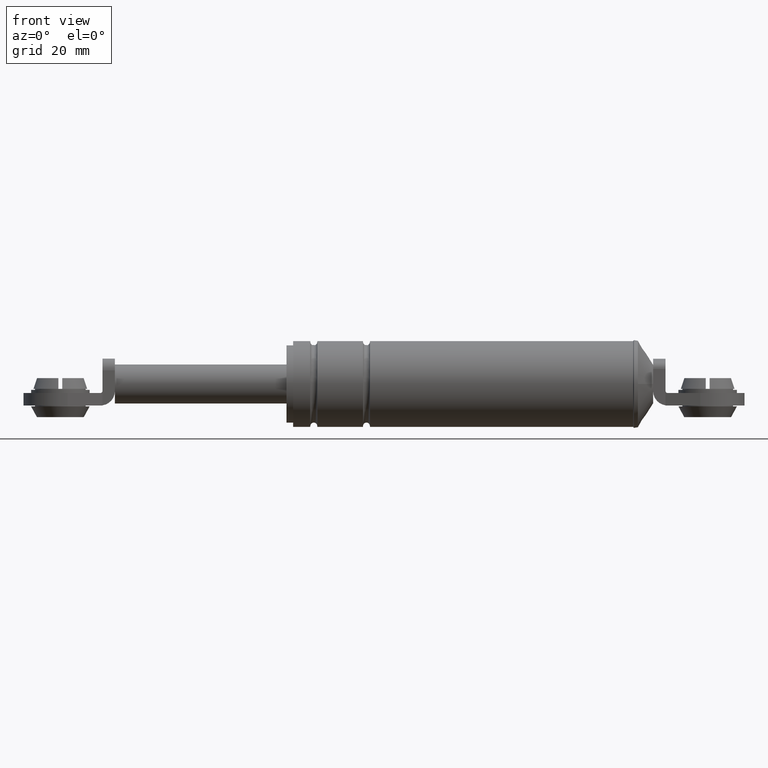
[diagram: clean part render]
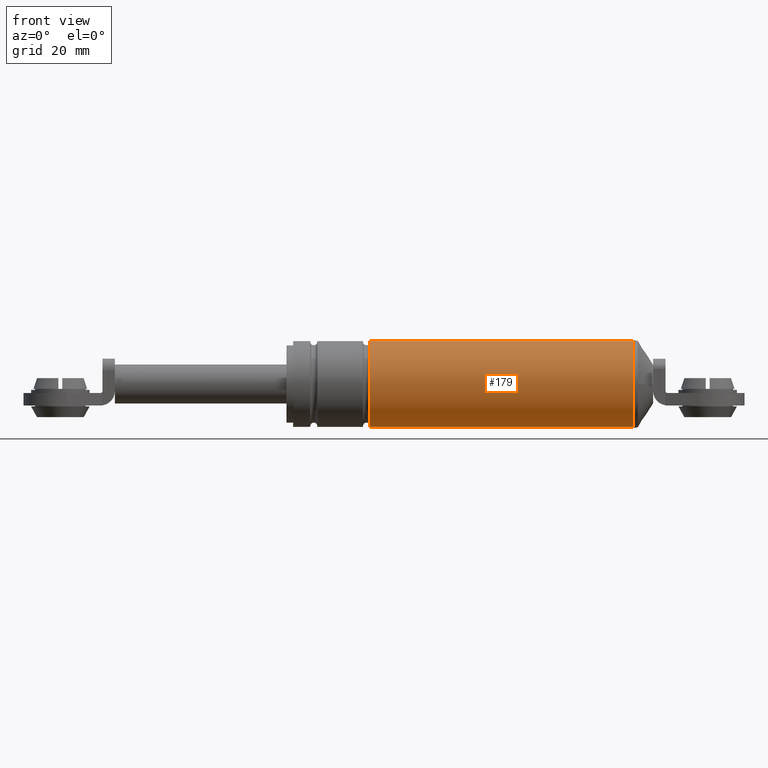
[diagram: same view with one face highlighted and labeled with its STEP entity id]
A machine part, front view. The second image highlights one B-rep face of the part: STEP entity #179.
In plain terms, the highlighted cylindrical surface (partial cylindrical patch) has radius 11 mm, axis along (1, 0, 0).
Its self-contained STEP definition (entity closure, byte-faithful):
#179=ADVANCED_FACE('',(#948),#947,.T.);
#947=CYLINDRICAL_SURFACE('',#2292,1.10000000001E+001);
#948=FACE_OUTER_BOUND('',#2293,.T.);
#2289=CARTESIAN_POINT('',(0.00000000000E+000,0.00000000000E+000,1.14952983996E+002));
#2290=DIRECTION('',(1.00000000000E+000,-0.00000000000E+000,-0.00000000000E+000));
#2291=DIRECTION('',(-0.00000000000E+000,-0.00000000000E+000,-1.00000000000E+000));
#2292=AXIS2_PLACEMENT_3D('',#2289,#2290,#2291);
#2293=EDGE_LOOP('',(#3196,#3197,#3198,#3199));
#3196=ORIENTED_EDGE('',*,*,#3713,.F.);
#3197=ORIENTED_EDGE('',*,*,#3809,.T.);
#3198=ORIENTED_EDGE('',*,*,#3811,.T.);
#3199=ORIENTED_EDGE('',*,*,#3810,.F.);
#3713=EDGE_CURVE('',#4578,#4577,#4585,.T.);
#3809=EDGE_CURVE('',#4578,#5201,#5208,.T.);
#3810=EDGE_CURVE('',#4577,#5200,#5214,.T.);
#3811=EDGE_CURVE('',#5201,#5200,#5220,.T.);
#4577=VERTEX_POINT('',#6938);
#4578=VERTEX_POINT('',#6939);
#4585=CIRCLE('',#6947,1.10000000002E+001);
#5200=VERTEX_POINT('',#7360);
#5201=VERTEX_POINT('',#7361);
#5208=(BOUNDED_CURVE() B_SPLINE_CURVE(1,(#7366,#7367),.UNSPECIFIED.,.F.,.F.) B_SPLINE_CURVE_WITH_KNOTS((2,2),(8.33333332085E-002,9.16666666563E-001),.UNSPECIFIED.) CURVE() GEOMETRIC_REPRESENTATION_ITEM() RATIONAL_B_SPLINE_CURVE((1.00000000000E+000,1.00000000000E+000)) REPRESENTATION_ITEM('') );
#5214=(BOUNDED_CURVE() B_SPLINE_CURVE(1,(#7368,#7369),.UNSPECIFIED.,.F.,.F.) B_SPLINE_CURVE_WITH_KNOTS((2,2),(8.33333333333E-002,9.16666666667E-001),.UNSPECIFIED.) CURVE() GEOMETRIC_REPRESENTATION_ITEM() RATIONAL_B_SPLINE_CURVE((7.50000000000E-001,7.50000000000E-001)) REPRESENTATION_ITEM('') );
#5220=CIRCLE('',#7373,1.10000000000E+001);
#6938=CARTESIAN_POINT('',(1.99842105705E+002,0.00000000000E+000,1.25952983997E+002));
#6939=CARTESIAN_POINT('',(1.99842105705E+002,5.92118946467E-016,1.03952983996E+002));
#6944=CARTESIAN_POINT('',(1.99842105705E+002,0.00000000000E+000,1.14952983996E+002));
#6945=DIRECTION('',(-1.00000000000E+000,0.00000000000E+000,0.00000000000E+000));
#6946=DIRECTION('',(0.00000000000E+000,-1.22460635382E-016,1.00000000000E+000));
#6947=AXIS2_PLACEMENT_3D('',#6944,#6945,#6946);
#7360=CARTESIAN_POINT('',(2.67336554007E+002,0.00000000000E+000,1.25952983996E+002));
#7361=CARTESIAN_POINT('',(2.67336554007E+002,5.92118946467E-016,1.03952983996E+002));
#7366=CARTESIAN_POINT('',(1.99842105695E+002,0.00000000000E+000,1.03952983996E+002));
#7367=CARTESIAN_POINT('',(2.67336553999E+002,0.00000000000E+000,1.03952983996E+002));
#7368=CARTESIAN_POINT('',(1.99842105705E+002,0.00000000000E+000,1.25952983996E+002));
#7369=CARTESIAN_POINT('',(2.67336554007E+002,0.00000000000E+000,1.25952983996E+002));
#7370=CARTESIAN_POINT('',(2.67336554007E+002,0.00000000000E+000,1.14952983996E+002));
#7371=DIRECTION('',(-1.00000000000E+000,0.00000000000E+000,0.00000000000E+000));
#7372=DIRECTION('',(0.00000000000E+000,-1.22460635382E-016,1.00000000000E+000));
#7373=AXIS2_PLACEMENT_3D('',#7370,#7371,#7372);